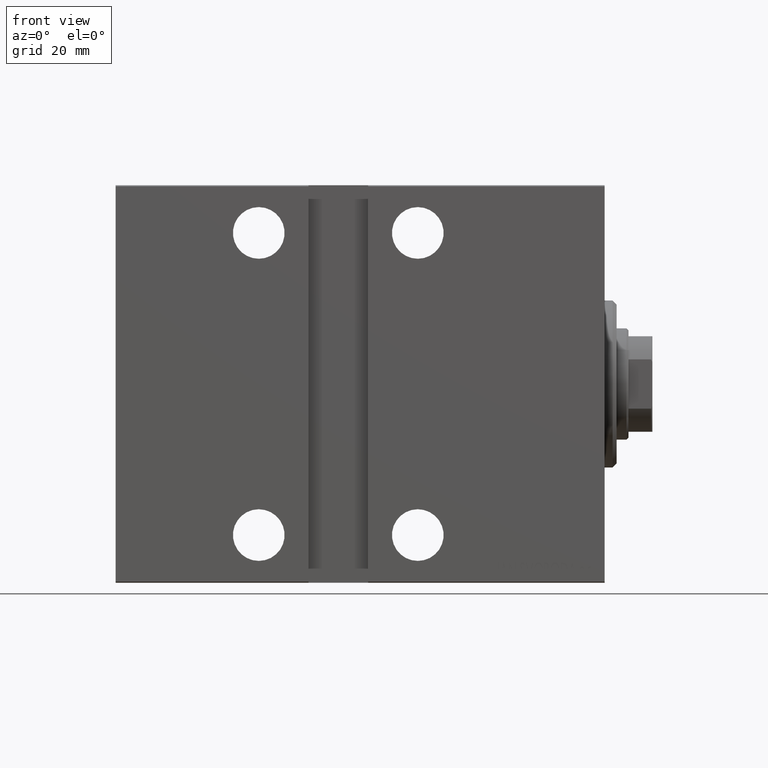
[diagram: clean part render]
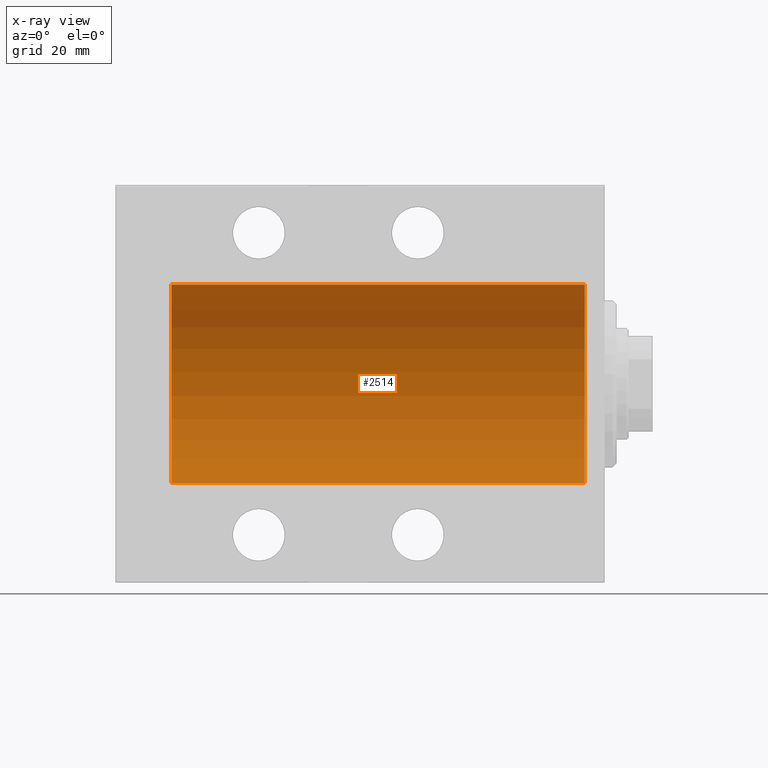
[diagram: x-ray — body ghosted, one internal face saturated and labeled with its STEP entity id]
A machine part, front view, then the same camera in x-ray: the body is ghosted and one INTERNAL B-rep face — a face not visible from any outside direction — is saturated and labeled: STEP entity #2514.
In plain terms, the highlighted cylindrical surface (partial cylindrical patch) has radius 25 mm, axis along (1, 0, -0).
Its self-contained STEP definition (entity closure, byte-faithful):
#2514 = ADVANCED_FACE ( 'NONE', ( #7554 ), #20869, .F. ) ;
#3755 = DIRECTION ( 'NONE',  ( -1.000000000000000000, 0.000000000000000000, 0.000000000000000000 ) ) ;
#4435 = CARTESIAN_POINT ( 'NONE',  ( 5.000000000000004441, 0.000000000000000000, 25.00000000000000000 ) ) ;
#7502 = CIRCLE ( 'NONE', #36048, 25.00000000000000000 ) ;
#7554 = FACE_OUTER_BOUND ( 'NONE', #20901, .T. ) ;
#7627 = VECTOR ( 'NONE', #27231, 1000.000000000000000 ) ;
#8634 = CARTESIAN_POINT ( 'NONE',  ( 5.000000000000004441, 0.000000000000000000, 0.000000000000000000 ) ) ;
#12880 = ORIENTED_EDGE ( 'NONE', *, *, #33060, .T. ) ;
#13238 = CARTESIAN_POINT ( 'NONE',  ( 109.0000000000000000, 0.000000000000000000, 0.000000000000000000 ) ) ;
#13670 = VECTOR ( 'NONE', #17676, 1000.000000000000000 ) ;
#14485 = AXIS2_PLACEMENT_3D ( 'NONE', #13238, #19994, #26538 ) ;
#17530 = CARTESIAN_POINT ( 'NONE',  ( 5.000000000000004441, 3.061616997868383043E-15, -25.00000000000000000 ) ) ;
#17676 = DIRECTION ( 'NONE',  ( -1.000000000000000000, -0.000000000000000000, -0.000000000000000000 ) ) ;
#19994 = DIRECTION ( 'NONE',  ( -1.000000000000000000, -0.000000000000000000, -0.000000000000000000 ) ) ;
#20869 = CYLINDRICAL_SURFACE ( 'NONE', #14485, 25.00000000000000000 ) ;
#20901 = EDGE_LOOP ( 'NONE', ( #30578, #25857, #12880, #33410 ) ) ;
#21839 = VERTEX_POINT ( 'NONE', #17530 ) ;
#21925 = DIRECTION ( 'NONE',  ( 0.000000000000000000, 0.000000000000000000, 1.000000000000000000 ) ) ;
#23559 = LINE ( 'NONE', #37090, #13670 ) ;
#23821 = EDGE_CURVE ( 'NONE', #34330, #21839, #23559, .T. ) ;
#24023 = CARTESIAN_POINT ( 'NONE',  ( 109.0000000000000000, 0.000000000000000000, 0.000000000000000000 ) ) ;
#25857 = ORIENTED_EDGE ( 'NONE', *, *, #23821, .T. ) ;
#26538 = DIRECTION ( 'NONE',  ( 0.000000000000000000, 0.000000000000000000, 1.000000000000000000 ) ) ;
#27231 = DIRECTION ( 'NONE',  ( -1.000000000000000000, -0.000000000000000000, -0.000000000000000000 ) ) ;
#27298 = CARTESIAN_POINT ( 'NONE',  ( 109.0000000000000000, 3.061616997868383043E-15, -25.00000000000000000 ) ) ;
#30578 = ORIENTED_EDGE ( 'NONE', *, *, #32178, .F. ) ;
#32178 = EDGE_CURVE ( 'NONE', #34330, #36742, #7502, .T. ) ;
#32309 = CARTESIAN_POINT ( 'NONE',  ( 109.0000000000000000, 0.000000000000000000, 25.00000000000000000 ) ) ;
#33060 = EDGE_CURVE ( 'NONE', #21839, #33193, #41665, .T. ) ;
#33193 = VERTEX_POINT ( 'NONE', #4435 ) ;
#33410 = ORIENTED_EDGE ( 'NONE', *, *, #37012, .F. ) ;
#34206 = CARTESIAN_POINT ( 'NONE',  ( 109.0000000000000000, 0.000000000000000000, 25.00000000000000000 ) ) ;
#34330 = VERTEX_POINT ( 'NONE', #27298 ) ;
#36048 = AXIS2_PLACEMENT_3D ( 'NONE', #24023, #3755, #40828 ) ;
#36742 = VERTEX_POINT ( 'NONE', #32309 ) ;
#37012 = EDGE_CURVE ( 'NONE', #36742, #33193, #40969, .T. ) ;
#37090 = CARTESIAN_POINT ( 'NONE',  ( 109.0000000000000000, 3.061616997868383043E-15, -25.00000000000000000 ) ) ;
#39577 = AXIS2_PLACEMENT_3D ( 'NONE', #8634, #41353, #21925 ) ;
#40828 = DIRECTION ( 'NONE',  ( 0.000000000000000000, 0.000000000000000000, 1.000000000000000000 ) ) ;
#40969 = LINE ( 'NONE', #34206, #7627 ) ;
#41353 = DIRECTION ( 'NONE',  ( -1.000000000000000000, 0.000000000000000000, 0.000000000000000000 ) ) ;
#41665 = CIRCLE ( 'NONE', #39577, 25.00000000000000000 ) ;